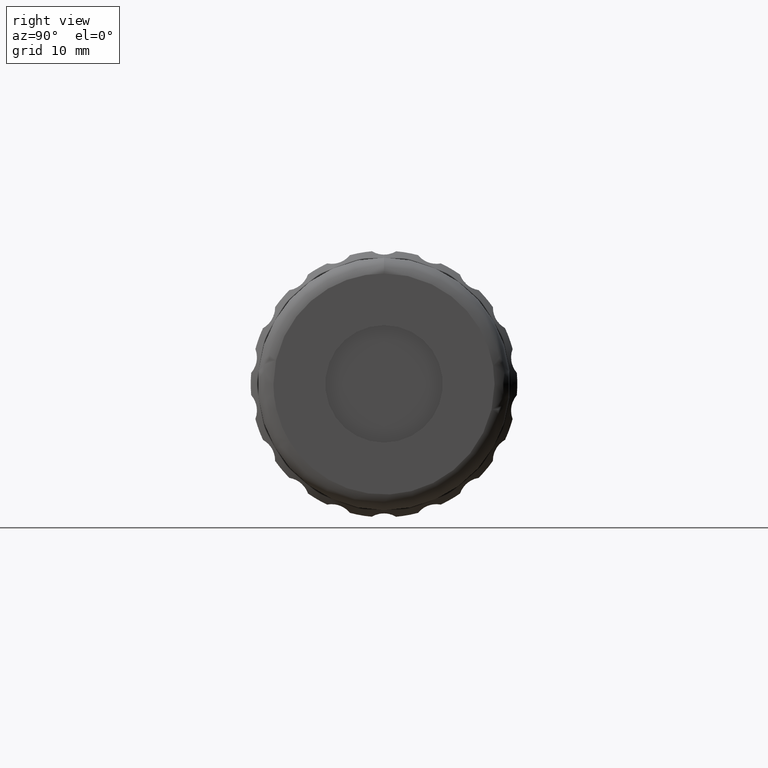
[diagram: clean part render]
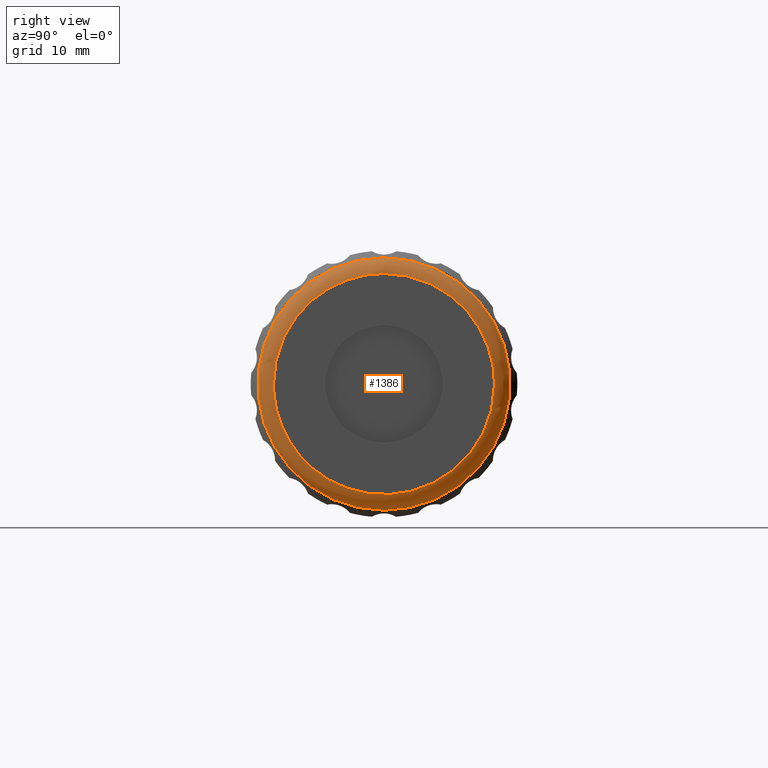
[diagram: same view with one face highlighted and labeled with its STEP entity id]
A machine part, right view. The second image highlights one B-rep face of the part: STEP entity #1386.
In plain terms, the highlighted face is a freeform B-spline surface patch.
Its self-contained STEP definition (entity closure, byte-faithful):
#18 = CARTESIAN_POINT ( 'NONE',  ( 68.44685803487880094, 62.12096200000000579, 32.20000000000000284 ) ) ;
#30 = CARTESIAN_POINT ( 'NONE',  ( 70.44685803487880094, 61.29253487525379995, 0.000000000000000000 ) ) ;
#94 = CARTESIAN_POINT ( 'NONE',  ( 70.44685803487880094, 31.92096199999999584, -1.036051192078660836E-15 ) ) ;
#123 = ORIENTED_EDGE ( 'NONE', *, *, #876, .F. ) ;
#166 = ORIENTED_EDGE ( 'NONE', *, *, #524, .T. ) ;
#171 = VERTEX_POINT ( 'NONE', #1473 ) ;
#174 = CARTESIAN_POINT ( 'NONE',  ( 70.44685803487880094, 31.92096199999999229, -28.20000000000000284 ) ) ;
#180 = CARTESIAN_POINT ( 'NONE',  ( 68.44685803487878673, 62.12096199999999868, 0.000000000000000000 ) ) ;
#191 = CARTESIAN_POINT ( 'NONE',  ( 70.44685803487880094, 30.74938912474618391, 30.54314575050763025 ) ) ;
#218 = DIRECTION ( 'NONE',  ( -1.000000000000000000, 0.000000000000000000, 0.000000000000000000 ) ) ;
#221 = CARTESIAN_POINT ( 'NONE',  ( 70.44685803487880094, 31.92096199999999584, 8.259588770539357583 ) ) ;
#332 = CARTESIAN_POINT ( 'NONE',  ( 68.44685803487878673, 29.92096199999999584, 0.000000000000000000 ) ) ;
#342 = CARTESIAN_POINT ( 'NONE',  ( 70.44685803487880094, 61.29253487525381416, -30.54314575050762315 ) ) ;
#373 = CARTESIAN_POINT ( 'NONE',  ( 70.44685803487880094, 31.92096199999999584, -1.036051192078660836E-15 ) ) ;
#392 =( BOUNDED_SURFACE ( )  B_SPLINE_SURFACE ( 3, 3, ( 
 ( #1797, #1481, #1320, #332, #988, #18, #180 ),
 ( #1331, #827, #1809, #1968, #840, #667, #504 ),
 ( #1160, #342, #1000, #1649, #191, #1494, #30 ),
 ( #1781, #1759, #174, #1457, #1937, #476, #1769 ) ),
 .UNSPECIFIED., .F., .T., .T. ) 
 B_SPLINE_SURFACE_WITH_KNOTS ( ( 4, 4 ),
 ( 4, 3, 4 ),
 ( 0.000000000000000000, 1.000000000000000000 ),
 ( 0.000000000000000000, 0.5000000000000000000, 1.000000000000000000 ),
 .UNSPECIFIED. ) 
 GEOMETRIC_REPRESENTATION_ITEM ( )  RATIONAL_B_SPLINE_SURFACE ( (
 ( 1.000000000000000000, 0.3333333333333333148, 0.3333333333333333148, 1.000000000000000000, 0.3333333333333333148, 0.3333333333333333148, 1.000000000000000000),
 ( 0.8047378541243649375, 0.2682459513747882940, 0.2682459513747882940, 0.8047378541243649375, 0.2682459513747882940, 0.2682459513747882940, 0.8047378541243649375),
 ( 0.8047378541243649375, 0.2682459513747882940, 0.2682459513747882940, 0.8047378541243649375, 0.2682459513747882940, 0.2682459513747882940, 0.8047378541243649375),
 ( 1.000000000000000000, 0.3333333333333333148, 0.3333333333333333148, 1.000000000000000000, 0.3333333333333333148, 0.3333333333333333148, 1.000000000000000000) ) ) 
 REPRESENTATION_ITEM ( '' )  SURFACE ( )  );
#405 =( BOUNDED_CURVE ( )  B_SPLINE_CURVE ( 3, ( #451, #746, #2044, #1895 ),
 .UNSPECIFIED., .F., .T. ) 
 B_SPLINE_CURVE_WITH_KNOTS ( ( 4, 4 ),
 ( 0.000000000000000000, 1.000000000000000000 ),
 .UNSPECIFIED. ) 
 CURVE ( )  GEOMETRIC_REPRESENTATION_ITEM ( )  RATIONAL_B_SPLINE_CURVE ( ( 1.000000000000000000, 0.3333333333333333703, 0.3333333333333333703, 1.000000000000000000 ) ) 
 REPRESENTATION_ITEM ( '' )  );
#412 = CARTESIAN_POINT ( 'NONE',  ( 70.44685803487880094, 46.02096199999999726, 14.10000000000000142 ) ) ;
#451 = CARTESIAN_POINT ( 'NONE',  ( 70.44685803487880094, 60.12096199999999868, 0.000000000000000000 ) ) ;
#476 = CARTESIAN_POINT ( 'NONE',  ( 70.44685803487880094, 60.12096199999999868, 28.20000000000000284 ) ) ;
#492 = FACE_OUTER_BOUND ( 'NONE', #1444, .T. ) ;
#504 = CARTESIAN_POINT ( 'NONE',  ( 69.61843091013260221, 62.12096199999999868, 0.000000000000000000 ) ) ;
#511 = EDGE_CURVE ( 'NONE', #2063, #1127, #835, .T. ) ;
#524 = EDGE_CURVE ( 'NONE', #1127, #917, #899, .T. ) ;
#667 = CARTESIAN_POINT ( 'NONE',  ( 69.61843091013260221, 62.12096199999999868, 32.20000000000000284 ) ) ;
#697 = CARTESIAN_POINT ( 'NONE',  ( 68.44685803487878673, 46.02096199999999726, 0.000000000000000000 ) ) ;
#715 = DIRECTION ( 'NONE',  ( 0.000000000000000000, 0.000000000000000000, 1.000000000000000000 ) ) ;
#746 = CARTESIAN_POINT ( 'NONE',  ( 70.44685803487880094, 60.12096200000000579, -28.19999999999999929 ) ) ;
#827 = CARTESIAN_POINT ( 'NONE',  ( 69.61843091013260221, 62.12096199999999868, -32.20000000000000284 ) ) ;
#835 =( BOUNDED_CURVE ( )  B_SPLINE_CURVE ( 3, ( #373, #221, #1057, #1039 ),
 .UNSPECIFIED., .F., .T. ) 
 B_SPLINE_CURVE_WITH_KNOTS ( ( 4, 4 ),
 ( 0.000000000000000000, 1.000000000000000000 ),
 .UNSPECIFIED. ) 
 CURVE ( )  GEOMETRIC_REPRESENTATION_ITEM ( )  RATIONAL_B_SPLINE_CURVE ( ( 1.000000000000000000, 0.8047378541243649375, 0.8047378541243649375, 1.000000000000000000 ) ) 
 REPRESENTATION_ITEM ( '' )  );
#840 = CARTESIAN_POINT ( 'NONE',  ( 69.61843091013260221, 29.92096199999999584, 32.20000000000000284 ) ) ;
#876 = EDGE_CURVE ( 'NONE', #171, #171, #1131, .T. ) ;
#895 = CARTESIAN_POINT ( 'NONE',  ( 70.44685803487880094, 54.28055077053935662, 14.09999999999999964 ) ) ;
#899 =( BOUNDED_CURVE ( )  B_SPLINE_CURVE ( 3, ( #412, #895, #1066, #1717 ),
 .UNSPECIFIED., .F., .T. ) 
 B_SPLINE_CURVE_WITH_KNOTS ( ( 4, 4 ),
 ( 0.000000000000000000, 1.000000000000000000 ),
 .UNSPECIFIED. ) 
 CURVE ( )  GEOMETRIC_REPRESENTATION_ITEM ( )  RATIONAL_B_SPLINE_CURVE ( ( 1.000000000000000000, 0.8047378541243649375, 0.8047378541243649375, 1.000000000000000000 ) ) 
 REPRESENTATION_ITEM ( '' )  );
#917 = VERTEX_POINT ( 'NONE', #1217 ) ;
#933 = ORIENTED_EDGE ( 'NONE', *, *, #511, .T. ) ;
#988 = CARTESIAN_POINT ( 'NONE',  ( 68.44685803487880094, 29.92096199999999584, 32.20000000000000284 ) ) ;
#1000 = CARTESIAN_POINT ( 'NONE',  ( 70.44685803487880094, 30.74938912474619102, -30.54314575050762315 ) ) ;
#1039 = CARTESIAN_POINT ( 'NONE',  ( 70.44685803487880094, 46.02096199999999726, 14.10000000000000142 ) ) ;
#1057 = CARTESIAN_POINT ( 'NONE',  ( 70.44685803487880094, 37.76137322946063790, 14.09999999999999964 ) ) ;
#1066 = CARTESIAN_POINT ( 'NONE',  ( 70.44685803487880094, 60.12096199999999868, 8.259588770539359359 ) ) ;
#1067 = EDGE_CURVE ( 'NONE', #917, #2063, #405, .T. ) ;
#1127 = VERTEX_POINT ( 'NONE', #2109 ) ;
#1131 = CIRCLE ( 'NONE', #1743, 16.10000000000000142 ) ;
#1148 = FACE_OUTER_BOUND ( 'NONE', #1194, .T. ) ;
#1160 = CARTESIAN_POINT ( 'NONE',  ( 70.44685803487880094, 61.29253487525379995, 0.000000000000000000 ) ) ;
#1194 = EDGE_LOOP ( 'NONE', ( #123 ) ) ;
#1217 = CARTESIAN_POINT ( 'NONE',  ( 70.44685803487880094, 60.12096199999999868, 0.000000000000000000 ) ) ;
#1320 = CARTESIAN_POINT ( 'NONE',  ( 68.44685803487880094, 29.92096199999999584, -32.20000000000000284 ) ) ;
#1331 = CARTESIAN_POINT ( 'NONE',  ( 69.61843091013260221, 62.12096199999999868, 0.000000000000000000 ) ) ;
#1386 = ADVANCED_FACE ( 'NONE', ( #492, #1148 ), #392, .T. ) ;
#1444 = EDGE_LOOP ( 'NONE', ( #166, #1755, #933 ) ) ;
#1457 = CARTESIAN_POINT ( 'NONE',  ( 70.44685803487880094, 31.92096199999999584, 0.000000000000000000 ) ) ;
#1473 = CARTESIAN_POINT ( 'NONE',  ( 68.44685803487878673, 46.02096199999999726, 16.10000000000000142 ) ) ;
#1481 = CARTESIAN_POINT ( 'NONE',  ( 68.44685803487880094, 62.12096200000000579, -32.20000000000000284 ) ) ;
#1494 = CARTESIAN_POINT ( 'NONE',  ( 70.44685803487880094, 61.29253487525381416, 30.54314575050762315 ) ) ;
#1649 = CARTESIAN_POINT ( 'NONE',  ( 70.44685803487880094, 30.74938912474618391, 0.000000000000000000 ) ) ;
#1717 = CARTESIAN_POINT ( 'NONE',  ( 70.44685803487880094, 60.12096199999999868, 0.000000000000000000 ) ) ;
#1743 = AXIS2_PLACEMENT_3D ( 'NONE', #697, #218, #715 ) ;
#1755 = ORIENTED_EDGE ( 'NONE', *, *, #1067, .T. ) ;
#1759 = CARTESIAN_POINT ( 'NONE',  ( 70.44685803487880094, 60.12096199999999868, -28.20000000000000284 ) ) ;
#1769 = CARTESIAN_POINT ( 'NONE',  ( 70.44685803487880094, 60.12096199999999868, 0.000000000000000000 ) ) ;
#1781 = CARTESIAN_POINT ( 'NONE',  ( 70.44685803487880094, 60.12096199999999868, 0.000000000000000000 ) ) ;
#1797 = CARTESIAN_POINT ( 'NONE',  ( 68.44685803487878673, 62.12096199999999868, 0.000000000000000000 ) ) ;
#1809 = CARTESIAN_POINT ( 'NONE',  ( 69.61843091013260221, 29.92096199999999584, -32.20000000000000284 ) ) ;
#1895 = CARTESIAN_POINT ( 'NONE',  ( 70.44685803487880094, 31.92096199999999584, -1.036051192078660836E-15 ) ) ;
#1937 = CARTESIAN_POINT ( 'NONE',  ( 70.44685803487880094, 31.92096199999999229, 28.20000000000000284 ) ) ;
#1968 = CARTESIAN_POINT ( 'NONE',  ( 69.61843091013260221, 29.92096199999999939, 0.000000000000000000 ) ) ;
#2044 = CARTESIAN_POINT ( 'NONE',  ( 70.44685803487880094, 31.92096199999999584, -28.19999999999999929 ) ) ;
#2063 = VERTEX_POINT ( 'NONE', #94 ) ;
#2109 = CARTESIAN_POINT ( 'NONE',  ( 70.44685803487880094, 46.02096199999999726, 14.10000000000000142 ) ) ;